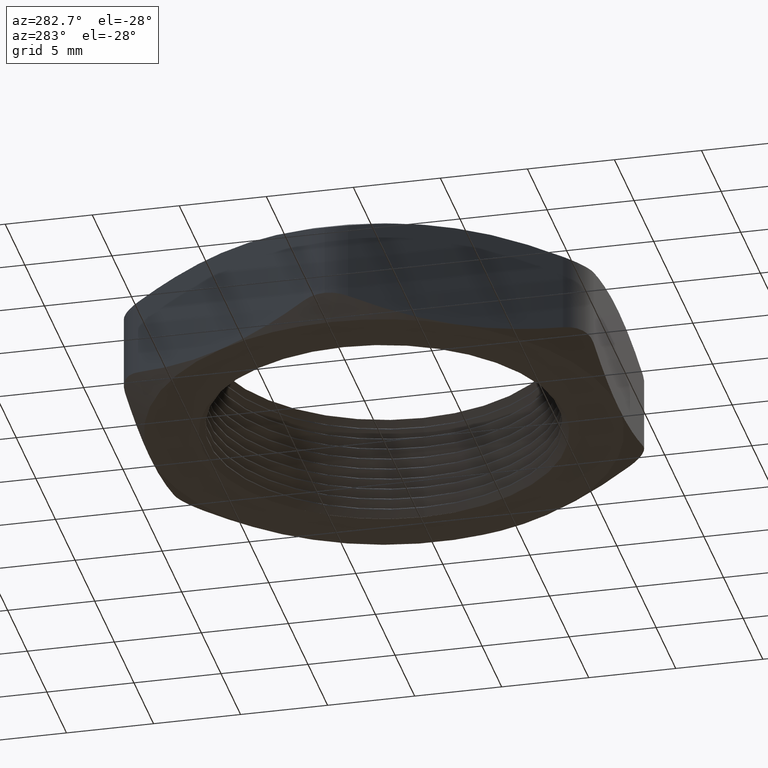
[diagram: clean part render]
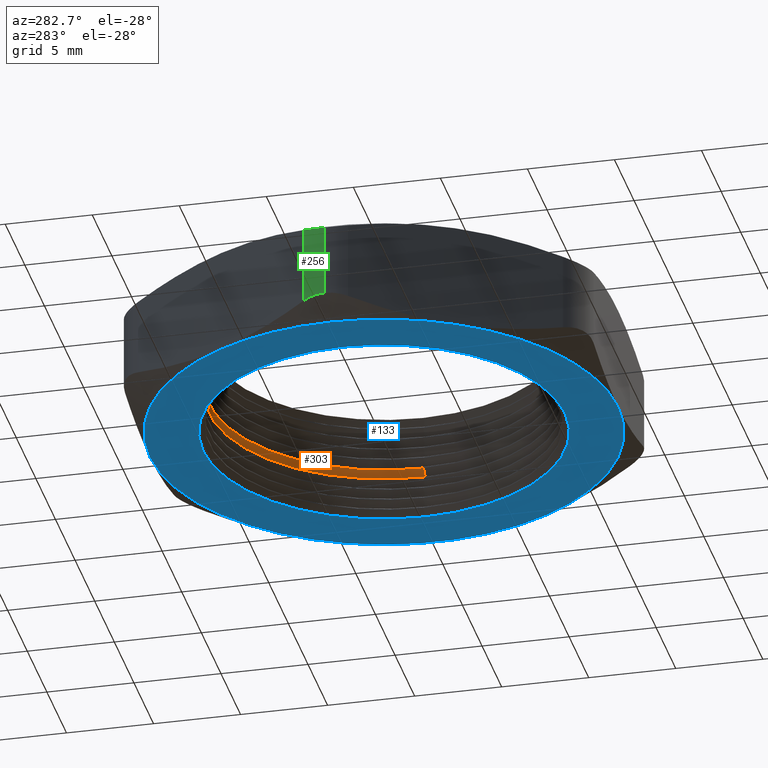
[diagram: same view with three faces highlighted in distinct colors, each labeled with its STEP entity id]
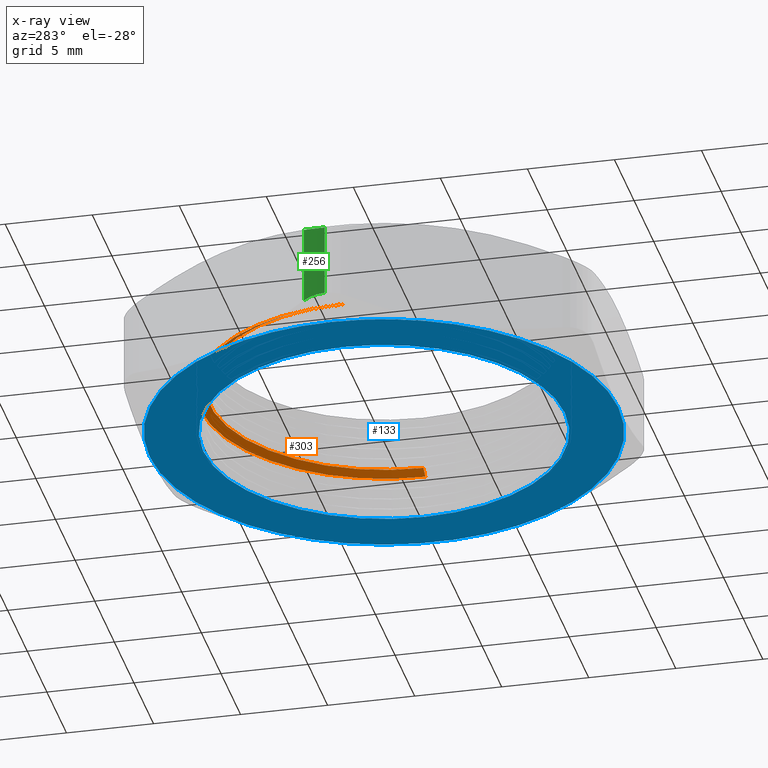
[diagram: x-ray of the same camera — body ghosted, the three highlighted faces saturated]
A machine part, auxiliary view with three faces highlighted in distinct colors.
The next image is the same camera in x-ray (body ghosted, the three faces saturated) — at least one of them is partly hidden behind the body in this view.
Their STEP definitions:

[orange] entity #303 — the highlighted conical surface has half-angle 60 deg.
#50 = EDGE_CURVE ( 'NONE', #2028, #2027, #670, .T. ) ;
#303 = ADVANCED_FACE ( 'NONE', ( #1645 ), #1644, .F. ) ;
#304 = EDGE_LOOP ( 'NONE', ( #305, #306, #307, #308 ) ) ;
#305 = ORIENTED_EDGE ( 'NONE', *, *, #2026, .F. ) ;
#306 = ORIENTED_EDGE ( 'NONE', *, *, #50, .T. ) ;
#307 = ORIENTED_EDGE ( 'NONE', *, *, #2031, .T. ) ;
#308 = ORIENTED_EDGE ( 'NONE', *, *, #309, .F. ) ;
#309 = EDGE_CURVE ( 'NONE', #2220, #2217, #1736, .T. ) ;
#666 = DIRECTION ( 'NONE',  ( 1.000000000000000000, 0.0000000000000000000, 0.0000000000000000000 ) ) ;
#667 = DIRECTION ( 'NONE',  ( 0.0000000000000000000, 0.0000000000000000000, 1.000000000000000000 ) ) ;
#668 = CARTESIAN_POINT ( 'NONE',  ( 0.0000000000000000000, 0.0000000000000000000, 0.1149999999999999900 ) ) ;
#669 = AXIS2_PLACEMENT_3D ( 'NONE', #668, #667, #666 ) ;
#670 = CIRCLE ( 'NONE', #669, 0.3950000000000000200 ) ;
#1092 = CARTESIAN_POINT ( 'NONE',  ( 0.4150000000000000400, 5.082284216461516300E-017, 0.1034529946162077000 ) ) ;
#1098 = CARTESIAN_POINT ( 'NONE',  ( -0.4150000000000000400, 0.0000000000000000000, 0.1034529946162077000 ) ) ;
#1641 = DIRECTION ( 'NONE',  ( 0.0000000000000000000, 0.0000000000000000000, -1.000000000000000000 ) ) ;
#1642 = AXIS2_PLACEMENT_3D ( 'NONE', #1649, #1641, #1737 ) ;
#1643 = CARTESIAN_POINT ( 'NONE',  ( 0.0000000000000000000, 0.0000000000000000000, 0.1034529946162077000 ) ) ;
#1644 = CONICAL_SURFACE ( 'NONE', #1642, 0.4150000000000000400, 1.047197551196606300 ) ;
#1645 = FACE_OUTER_BOUND ( 'NONE', #304, .T. ) ;
#1649 = CARTESIAN_POINT ( 'NONE',  ( 0.0000000000000000000, 0.0000000000000000000, 0.1034529946162077000 ) ) ;
#1733 = DIRECTION ( 'NONE',  ( 1.000000000000000000, 0.0000000000000000000, 0.0000000000000000000 ) ) ;
#1734 = DIRECTION ( 'NONE',  ( 0.0000000000000000000, 0.0000000000000000000, 1.000000000000000000 ) ) ;
#1735 = AXIS2_PLACEMENT_3D ( 'NONE', #1643, #1734, #1733 ) ;
#1736 = CIRCLE ( 'NONE', #1735, 0.4150000000000000400 ) ;
#1737 = DIRECTION ( 'NONE',  ( -1.000000000000000000, 0.0000000000000000000, 0.0000000000000000000 ) ) ;
#1955 = CARTESIAN_POINT ( 'NONE',  ( 0.3950000000000000200, 4.837354856632044300E-017, 0.1149999999999999900 ) ) ;
#1956 = CARTESIAN_POINT ( 'NONE',  ( -0.3950000000000000200, 0.0000000000000000000, 0.1149999999999999900 ) ) ;
#1957 = DIRECTION ( 'NONE',  ( 0.8660254037844429300, 1.060575238724912100E-016, -0.4999999999999926200 ) ) ;
#1958 = VECTOR ( 'NONE', #1957, 39.37007874015748100 ) ;
#1959 = CARTESIAN_POINT ( 'NONE',  ( 0.4150000000000000400, 5.082284216461516300E-017, 0.1034529946162077000 ) ) ;
#1960 = LINE ( 'NONE', #1959, #1958 ) ;
#2017 = DIRECTION ( 'NONE',  ( -0.8660254037844429300, 0.0000000000000000000, -0.4999999999999926200 ) ) ;
#2018 = VECTOR ( 'NONE', #2017, 39.37007874015748100 ) ;
#2019 = CARTESIAN_POINT ( 'NONE',  ( -0.4150000000000000400, 0.0000000000000000000, 0.1034529946162077000 ) ) ;
#2020 = LINE ( 'NONE', #2019, #2018 ) ;
#2026 = EDGE_CURVE ( 'NONE', #2028, #2220, #1960, .T. ) ;
#2027 = VERTEX_POINT ( 'NONE', #1956 ) ;
#2028 = VERTEX_POINT ( 'NONE', #1955 ) ;
#2031 = EDGE_CURVE ( 'NONE', #2027, #2217, #2020, .T. ) ;
#2217 = VERTEX_POINT ( 'NONE', #1098 ) ;
#2220 = VERTEX_POINT ( 'NONE', #1092 ) ;

[blue] entity #133 — the highlighted planar face has unit normal (0, 0, -1).
#42 = ORIENTED_EDGE ( 'NONE', *, *, #43, .T. ) ;
#43 = EDGE_CURVE ( 'NONE', #110, #44, #681, .T. ) ;
#44 = VERTEX_POINT ( 'NONE', #676 ) ;
#92 = ORIENTED_EDGE ( 'NONE', *, *, #93, .T. ) ;
#93 = EDGE_CURVE ( 'NONE', #140, #103, #586, .T. ) ;
#94 = EDGE_LOOP ( 'NONE', ( #95, #171 ) ) ;
#95 = ORIENTED_EDGE ( 'NONE', *, *, #170, .T. ) ;
#102 = EDGE_CURVE ( 'NONE', #103, #1503, #566, .T. ) ;
#103 = VERTEX_POINT ( 'NONE', #561 ) ;
#104 = ORIENTED_EDGE ( 'NONE', *, *, #1508, .T. ) ;
#105 = ORIENTED_EDGE ( 'NONE', *, *, #106, .T. ) ;
#106 = EDGE_CURVE ( 'NONE', #1501, #107, #560, .T. ) ;
#107 = VERTEX_POINT ( 'NONE', #555 ) ;
#108 = ORIENTED_EDGE ( 'NONE', *, *, #109, .T. ) ;
#109 = EDGE_CURVE ( 'NONE', #107, #110, #554, .T. ) ;
#110 = VERTEX_POINT ( 'NONE', #549 ) ;
#133 = ADVANCED_FACE ( 'NONE', ( #1386, #1446 ), #1499, .T. ) ;
#134 = EDGE_LOOP ( 'NONE', ( #135, #104, #105, #108, #42, #138, #92 ) ) ;
#135 = ORIENTED_EDGE ( 'NONE', *, *, #102, .T. ) ;
#138 = ORIENTED_EDGE ( 'NONE', *, *, #139, .T. ) ;
#139 = EDGE_CURVE ( 'NONE', #44, #140, #1409, .T. ) ;
#140 = VERTEX_POINT ( 'NONE', #1390 ) ;
#170 = EDGE_CURVE ( 'NONE', #2235, #2234, #1420, .T. ) ;
#171 = ORIENTED_EDGE ( 'NONE', *, *, #2233, .T. ) ;
#549 = CARTESIAN_POINT ( 'NONE',  ( 0.4589934640057525800, 0.2650000000000000100, 0.0000000000000000000 ) ) ;
#550 = DIRECTION ( 'NONE',  ( -1.000000000000000000, 0.0000000000000000000, 0.0000000000000000000 ) ) ;
#551 = DIRECTION ( 'NONE',  ( 0.0000000000000000000, 0.0000000000000000000, -1.000000000000000000 ) ) ;
#552 = CARTESIAN_POINT ( 'NONE',  ( 0.0000000000000000000, 0.0000000000000000000, 0.0000000000000000000 ) ) ;
#553 = AXIS2_PLACEMENT_3D ( 'NONE', #552, #551, #550 ) ;
#554 = CIRCLE ( 'NONE', #553, 0.5300000000000001400 ) ;
#555 = CARTESIAN_POINT ( 'NONE',  ( 0.0000000000000000000, 0.5299999999999999200, 0.0000000000000000000 ) ) ;
#556 = DIRECTION ( 'NONE',  ( -1.000000000000000000, 0.0000000000000000000, 0.0000000000000000000 ) ) ;
#557 = DIRECTION ( 'NONE',  ( 0.0000000000000000000, 0.0000000000000000000, -1.000000000000000000 ) ) ;
#558 = CARTESIAN_POINT ( 'NONE',  ( 0.0000000000000000000, 0.0000000000000000000, 0.0000000000000000000 ) ) ;
#559 = AXIS2_PLACEMENT_3D ( 'NONE', #558, #557, #556 ) ;
#560 = CIRCLE ( 'NONE', #559, 0.5300000000000001400 ) ;
#561 = CARTESIAN_POINT ( 'NONE',  ( -0.4589934640057525800, -0.2649999999999999600, 0.0000000000000000000 ) ) ;
#562 = DIRECTION ( 'NONE',  ( -1.000000000000000000, 0.0000000000000000000, 0.0000000000000000000 ) ) ;
#563 = DIRECTION ( 'NONE',  ( 0.0000000000000000000, 0.0000000000000000000, -1.000000000000000000 ) ) ;
#564 = AXIS2_PLACEMENT_3D ( 'NONE', #565, #563, #562 ) ;
#565 = CARTESIAN_POINT ( 'NONE',  ( 0.0000000000000000000, 0.0000000000000000000, 0.0000000000000000000 ) ) ;
#566 = CIRCLE ( 'NONE', #564, 0.5300000000000001400 ) ;
#582 = DIRECTION ( 'NONE',  ( -1.000000000000000000, 0.0000000000000000000, 0.0000000000000000000 ) ) ;
#583 = DIRECTION ( 'NONE',  ( 0.0000000000000000000, 0.0000000000000000000, -1.000000000000000000 ) ) ;
#584 = CARTESIAN_POINT ( 'NONE',  ( 0.0000000000000000000, 0.0000000000000000000, 0.0000000000000000000 ) ) ;
#585 = AXIS2_PLACEMENT_3D ( 'NONE', #584, #583, #582 ) ;
#586 = CIRCLE ( 'NONE', #585, 0.5300000000000001400 ) ;
#676 = CARTESIAN_POINT ( 'NONE',  ( 0.4589934640057525800, -0.2650000000000000700, 0.0000000000000000000 ) ) ;
#677 = DIRECTION ( 'NONE',  ( -1.000000000000000000, 0.0000000000000000000, 0.0000000000000000000 ) ) ;
#678 = DIRECTION ( 'NONE',  ( 0.0000000000000000000, 0.0000000000000000000, -1.000000000000000000 ) ) ;
#679 = CARTESIAN_POINT ( 'NONE',  ( 0.0000000000000000000, 0.0000000000000000000, 0.0000000000000000000 ) ) ;
#680 = AXIS2_PLACEMENT_3D ( 'NONE', #679, #678, #677 ) ;
#681 = CIRCLE ( 'NONE', #680, 0.5300000000000001400 ) ;
#1125 = CARTESIAN_POINT ( 'NONE',  ( 0.4090192378864665500, 0.0000000000000000000, 0.0000000000000000000 ) ) ;
#1126 = CARTESIAN_POINT ( 'NONE',  ( -0.4090192378864665500, 5.045662610567513800E-017, 0.0000000000000000000 ) ) ;
#1127 = DIRECTION ( 'NONE',  ( -1.000000000000000000, 0.0000000000000000000, 0.0000000000000000000 ) ) ;
#1128 = DIRECTION ( 'NONE',  ( 0.0000000000000000000, 0.0000000000000000000, 1.000000000000000000 ) ) ;
#1129 = AXIS2_PLACEMENT_3D ( 'NONE', #1135, #1128, #1127 ) ;
#1130 = CIRCLE ( 'NONE', #1129, 0.4090192378864665500 ) ;
#1135 = CARTESIAN_POINT ( 'NONE',  ( 0.0000000000000000000, 0.0000000000000000000, 0.0000000000000000000 ) ) ;
#1386 = FACE_OUTER_BOUND ( 'NONE', #134, .T. ) ;
#1390 = CARTESIAN_POINT ( 'NONE',  ( 5.914624404477003900E-017, -0.5300000000000001400, 0.0000000000000000000 ) ) ;
#1391 = DIRECTION ( 'NONE',  ( -1.000000000000000000, 0.0000000000000000000, 0.0000000000000000000 ) ) ;
#1392 = DIRECTION ( 'NONE',  ( 0.0000000000000000000, 0.0000000000000000000, -1.000000000000000000 ) ) ;
#1393 = AXIS2_PLACEMENT_3D ( 'NONE', #1408, #1392, #1391 ) ;
#1408 = CARTESIAN_POINT ( 'NONE',  ( 0.0000000000000000000, 0.0000000000000000000, 0.0000000000000000000 ) ) ;
#1409 = CIRCLE ( 'NONE', #1393, 0.5300000000000001400 ) ;
#1416 = DIRECTION ( 'NONE',  ( -1.000000000000000000, 0.0000000000000000000, 0.0000000000000000000 ) ) ;
#1417 = DIRECTION ( 'NONE',  ( 0.0000000000000000000, 0.0000000000000000000, 1.000000000000000000 ) ) ;
#1418 = CARTESIAN_POINT ( 'NONE',  ( 0.0000000000000000000, 0.0000000000000000000, 0.0000000000000000000 ) ) ;
#1419 = AXIS2_PLACEMENT_3D ( 'NONE', #1418, #1417, #1416 ) ;
#1420 = CIRCLE ( 'NONE', #1419, 0.4090192378864665500 ) ;
#1446 = FACE_BOUND ( 'NONE', #94, .T. ) ;
#1495 = DIRECTION ( 'NONE',  ( -1.000000000000000000, 0.0000000000000000000, 0.0000000000000000000 ) ) ;
#1496 = DIRECTION ( 'NONE',  ( 0.0000000000000000000, 0.0000000000000000000, -1.000000000000000000 ) ) ;
#1497 = CARTESIAN_POINT ( 'NONE',  ( 1.365923996832131600E-016, 1.060000000000000500, 0.0000000000000000000 ) ) ;
#1498 = AXIS2_PLACEMENT_3D ( 'NONE', #1497, #1496, #1495 ) ;
#1499 = PLANE ( 'NONE',  #1498 ) ;
#1501 = VERTEX_POINT ( 'NONE', #1952 ) ;
#1503 = VERTEX_POINT ( 'NONE', #1947 ) ;
#1508 = EDGE_CURVE ( 'NONE', #1503, #1501, #1984, .T. ) ;
#1934 = CARTESIAN_POINT ( 'NONE',  ( 0.0000000000000000000, 0.0000000000000000000, 0.0000000000000000000 ) ) ;
#1947 = CARTESIAN_POINT ( 'NONE',  ( -0.5300000000000001400, 0.0000000000000000000, 0.0000000000000000000 ) ) ;
#1952 = CARTESIAN_POINT ( 'NONE',  ( -0.4589934640057525300, 0.2650000000000000700, 0.0000000000000000000 ) ) ;
#1981 = DIRECTION ( 'NONE',  ( -1.000000000000000000, 0.0000000000000000000, 0.0000000000000000000 ) ) ;
#1982 = DIRECTION ( 'NONE',  ( 0.0000000000000000000, 0.0000000000000000000, -1.000000000000000000 ) ) ;
#1983 = AXIS2_PLACEMENT_3D ( 'NONE', #1934, #1982, #1981 ) ;
#1984 = CIRCLE ( 'NONE', #1983, 0.5300000000000001400 ) ;
#2233 = EDGE_CURVE ( 'NONE', #2234, #2235, #1130, .T. ) ;
#2234 = VERTEX_POINT ( 'NONE', #1126 ) ;
#2235 = VERTEX_POINT ( 'NONE', #1125 ) ;

[green] entity #256 — the highlighted cylindrical surface (partial cylindrical patch) has radius 2.54 mm, axis along (0, 0, -1).
#20 = VERTEX_POINT ( 'NONE', #737 ) ;
#168 = EDGE_CURVE ( 'NONE', #2268, #193, #1425, .T. ) ;
#193 = VERTEX_POINT ( 'NONE', #1368 ) ;
#256 = ADVANCED_FACE ( 'NONE', ( #1707 ), #1702, .T. ) ;
#257 = EDGE_LOOP ( 'NONE', ( #258, #460, #461, #462 ) ) ;
#258 = ORIENTED_EDGE ( 'NONE', *, *, #2290, .F. ) ;
#424 = EDGE_CURVE ( 'NONE', #193, #20, #2333, .T. ) ;
#460 = ORIENTED_EDGE ( 'NONE', *, *, #424, .F. ) ;
#461 = ORIENTED_EDGE ( 'NONE', *, *, #168, .F. ) ;
#462 = ORIENTED_EDGE ( 'NONE', *, *, #2267, .F. ) ;
#737 = CARTESIAN_POINT ( 'NONE',  ( -0.5965212315030782300, 5.975917520176507700E-017, 0.2015939490848726300 ) ) ;
#1205 = CARTESIAN_POINT ( 'NONE',  ( -0.5965212315030782300, -3.403593173353176800E-025, 0.03840605091512739500 ) ) ;
#1225 = CARTESIAN_POINT ( 'NONE',  ( -0.5831237718815222000, 0.05000000000000010000, 0.03190638126214320700 ) ) ;
#1226 = CARTESIAN_POINT ( 'NONE',  ( -0.5874339482388026800, 0.04253455555960873600, 0.03401753964666053000 ) ) ;
#1227 = CARTESIAN_POINT ( 'NONE',  ( -0.5908131712624054000, 0.03441686282104225400, 0.03565369559001657600 ) ) ;
#1228 = CARTESIAN_POINT ( 'NONE',  ( -0.5953360325567611500, 0.01763874833257975500, 0.03783774930936034000 ) ) ;
#1229 = CARTESIAN_POINT ( 'NONE',  ( -0.5965212315030781200, 0.008765464616512123200, 0.03840605091512740200 ) ) ;
#1230 = CARTESIAN_POINT ( 'NONE',  ( -0.5965212315030782300, -3.403593173353176800E-025, 0.03840605091512739500 ) ) ;
#1233 = CARTESIAN_POINT ( 'NONE',  ( -0.5831237718815222000, 0.05000000000000010000, 0.03190638126214320700 ) ) ;
#1234 = B_SPLINE_CURVE_WITH_KNOTS ( 'NONE', 3,
 ( #1230, #1229, #1228, #1227, #1226, #1225 ),
 .UNSPECIFIED., .F., .F.,
 ( 4, 2, 4 ),
 ( 0.001338114895954698100, 0.002005113312624132500, 0.002672111729293567000 ),
 .UNSPECIFIED. ) ;
#1259 = DIRECTION ( 'NONE',  ( 0.0000000000000000000, 0.0000000000000000000, -1.000000000000000000 ) ) ;
#1260 = VECTOR ( 'NONE', #1259, 39.37007874015748100 ) ;
#1261 = CARTESIAN_POINT ( 'NONE',  ( -0.5965212315030782300, 5.975917486140575200E-017, 0.2399999999999999900 ) ) ;
#1262 = LINE ( 'NONE', #1261, #1260 ) ;
#1368 = CARTESIAN_POINT ( 'NONE',  ( -0.5831237718815220900, 0.05000000000000012100, 0.2080936187378568400 ) ) ;
#1422 = DIRECTION ( 'NONE',  ( 0.0000000000000000000, 0.0000000000000000000, 1.000000000000000000 ) ) ;
#1423 = VECTOR ( 'NONE', #1422, 39.37007874015748100 ) ;
#1424 = CARTESIAN_POINT ( 'NONE',  ( -0.5831237718815222000, 0.05000000000000007900, 0.2399999999999999900 ) ) ;
#1425 = LINE ( 'NONE', #1424, #1423 ) ;
#1697 = DIRECTION ( 'NONE',  ( -1.000000000000000000, 0.0000000000000000000, 0.0000000000000000000 ) ) ;
#1698 = DIRECTION ( 'NONE',  ( 0.0000000000000000000, 0.0000000000000000000, -1.000000000000000000 ) ) ;
#1699 = CARTESIAN_POINT ( 'NONE',  ( -0.4965212315030782500, 5.975917486140575200E-017, 0.2399999999999999900 ) ) ;
#1700 = AXIS2_PLACEMENT_3D ( 'NONE', #1699, #1698, #1697 ) ;
#1702 = CYLINDRICAL_SURFACE ( 'NONE', #1700, 0.1000000000000000200 ) ;
#1707 = FACE_OUTER_BOUND ( 'NONE', #257, .T. ) ;
#2267 = EDGE_CURVE ( 'NONE', #2284, #2268, #1234, .T. ) ;
#2268 = VERTEX_POINT ( 'NONE', #1233 ) ;
#2284 = VERTEX_POINT ( 'NONE', #1205 ) ;
#2290 = EDGE_CURVE ( 'NONE', #20, #2284, #1262, .T. ) ;
#2333 = B_SPLINE_CURVE_WITH_KNOTS ( 'NONE', 3,
 ( #2334, #2335, #2336, #2337, #2338, #2339 ),
 .UNSPECIFIED., .F., .F.,
 ( 4, 2, 4 ),
 ( 1.517883041479706200E-018, 0.0006690574479773508800, 0.001338114895954700200 ),
 .UNSPECIFIED. ) ;
#2334 = CARTESIAN_POINT ( 'NONE',  ( -0.5831237718815220900, 0.05000000000000012100, 0.2080936187378568400 ) ) ;
#2335 = CARTESIAN_POINT ( 'NONE',  ( -0.5874461532471804100, 0.04251341586499073800, 0.2059764822439456300 ) ) ;
#2336 = CARTESIAN_POINT ( 'NONE',  ( -0.5907735808882251800, 0.03454572058942159700, 0.2043654439536533900 ) ) ;
#2337 = CARTESIAN_POINT ( 'NONE',  ( -0.5953478593261331000, 0.01761277402300903300, 0.2021565181018570300 ) ) ;
#2338 = CARTESIAN_POINT ( 'NONE',  ( -0.5965212315030782300, 0.008792523700346196000, 0.2015939490848726000 ) ) ;
#2339 = CARTESIAN_POINT ( 'NONE',  ( -0.5965212315030782300, 5.975917520176507700E-017, 0.2015939490848726300 ) ) ;